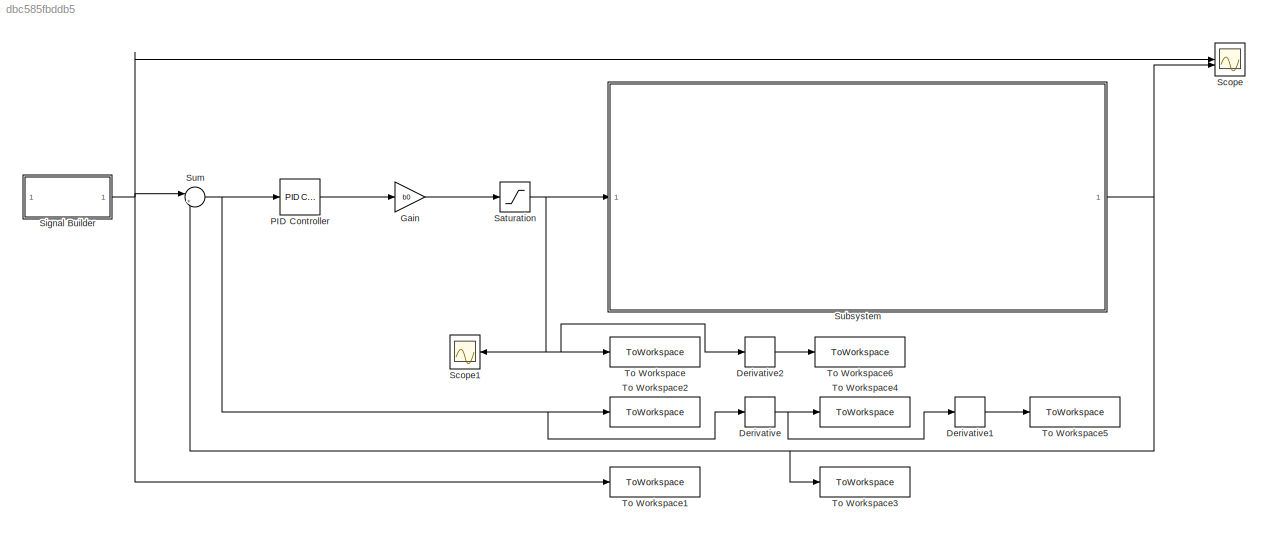
MODEL slx_dbc585fbddb5
KIND model
CONFIG AbsTol = 1e-6
CONFIG EnableMultiTasking = off
CONFIG FixedStep = 0.001
CONFIG MaxStep = auto
CONFIG MinStep = auto
CONFIG RelTol = 1e-6
CONFIG SampleTimeConstraint = Unconstrained
CONFIG SolverName = FixedStepAuto
CONFIG StartTime = 0.0
CONFIG StopTime = 10.0
BLOCK [Derivative] Derivative
BLOCK [Derivative] Derivative1
BLOCK [Derivative] Derivative2
BLOCK [Gain] Gain
  Gain = b0
BLOCK [Reference] PID Controller  REF=slpidlib/PID Controller
  LibrarySourceBlock = simulink/Continuous/PID Controller
  SourceBlock = slpidlib/PID Controller
  SourceType = PID 1dof
BLOCK [Saturate] Saturation
  LowerLimit = -2*u
  UpperLimit = 2*u
BLOCK [Scope] Scope
  Floating = off
  NumInputPorts = 2
  ScopeSpecificationString = Simulink.scopes.TimeScopeBlockCfg('CurrentConfiguration', extmgr.ConfigurationSet(extmgr.Configuration('Core','General UI',true,'FigureColor',[1 1 1]),extmgr.Configuration('Core','Source UI',true),extmgr.Configuration('Sources','WiredSimulink',true),extmgr.Configuration('Visuals','Time Domain',true,'SerializedDisplays',{struct('MinYLimReal','-0.45832','MaxYLimReal','4.12484','YLabelReal','','MinYL...<+2430ch>
BLOCK [Scope] Scope1
  Floating = off
  NumInputPorts = 1
  ScopeSpecificationString = Simulink.scopes.TimeScopeBlockCfg('CurrentConfiguration', extmgr.ConfigurationSet(extmgr.Configuration('Core','General UI',true,'FigureColor',[1 1 1]),extmgr.Configuration('Core','Source UI',true),extmgr.Configuration('Sources','WiredSimulink',true,'DataLoggingVariableName','ScopeData1'),extmgr.Configuration('Visuals','Time Domain',true,'SerializedDisplays',{struct('MinYLimReal','-1390.00000','Max...<+2467ch>
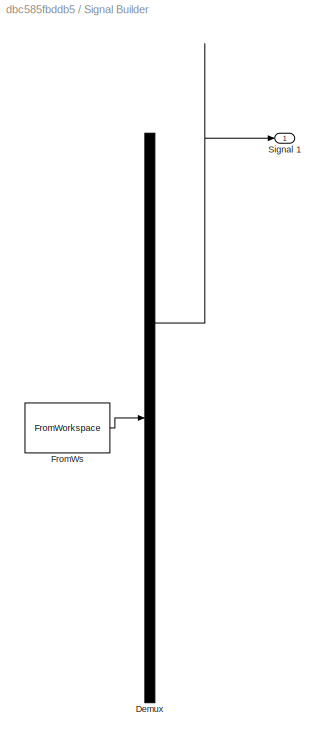
BLOCK [SubSystem] Signal Builder
  ClipboardFcn = sigbuilder_block('clipboard');
  CloseFcn = sigbuilder_block('close');
  ContinueFcn = sigbuilder_block('continue');
  CopyFcn = sigbuilder_block('copy');
  DeleteFcn = sigbuilder_block('delete');
  LoadFcn = sigbuilder_block('load');
  MaskHideContents = on
  ModelCloseFcn = sigbuilder_block('modelClose');
  NameChangeFcn = sigbuilder_block('namechange');
  OpenFcn = sigbuilder_block('open',[437.6 199.2 550.4 400 ]);
  PauseFcn = sigbuilder_block('pause');
  PreSaveFcn = sigbuilder_block('preSave');
  StartFcn = sigbuilder_block('start');
  StopFcn = sigbuilder_block('stop');
  Tag = STV Subsys
BLOCK [Demux] Signal Builder/Demux
  DisplayOption = none
  Outputs = 1
  Tag = STV Demux
BLOCK [FromWorkspace] Signal Builder/FromWs
  Tag = STV FromWs
  VariableName = tuvar
BLOCK [Outport] Signal Builder/Signal 1
  Tag = STV Outport
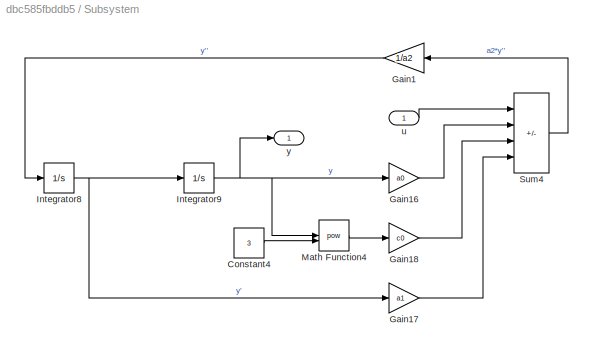
BLOCK [SubSystem] Subsystem
BLOCK [Constant] Subsystem/Constant4
  Value = 3
BLOCK [Gain] Subsystem/Gain1
  Gain = 1/a2
BLOCK [Gain] Subsystem/Gain16
  Gain = a0
BLOCK [Gain] Subsystem/Gain17
  Gain = a1
BLOCK [Gain] Subsystem/Gain18
  Gain = c0
BLOCK [Integrator] Subsystem/Integrator8
BLOCK [Integrator] Subsystem/Integrator9
BLOCK [Math] Subsystem/Math Function4
  Operator = pow
BLOCK [Sum] Subsystem/Sum4
  IconShape = rectangular
  Inputs = |+---
BLOCK [Inport] Subsystem/u
BLOCK [Outport] Subsystem/y
BLOCK [Sum] Sum
  Inputs = |+-
BLOCK [ToWorkspace] To Workspace
  FixptAsFi = on
  MaxDataPoints = inf
  SampleTime = -1
  SaveFormat = Timeseries
  VariableName = u
BLOCK [ToWorkspace] To Workspace1
  FixptAsFi = on
  MaxDataPoints = inf
  SampleTime = -1
  SaveFormat = Timeseries
  VariableName = w
BLOCK [ToWorkspace] To Workspace2
  FixptAsFi = on
  MaxDataPoints = inf
  SampleTime = -1
  SaveFormat = Timeseries
  VariableName = e
BLOCK [ToWorkspace] To Workspace3
  FixptAsFi = on
  MaxDataPoints = inf
  SampleTime = -1
  SaveFormat = Timeseries
  VariableName = y
BLOCK [ToWorkspace] To Workspace4
  FixptAsFi = on
  MaxDataPoints = inf
  SampleTime = -1
  SaveFormat = Timeseries
  VariableName = de
BLOCK [ToWorkspace] To Workspace5
  FixptAsFi = on
  MaxDataPoints = inf
  SampleTime = -1
  SaveFormat = Timeseries
  VariableName = dde
BLOCK [ToWorkspace] To Workspace6
  FixptAsFi = on
  MaxDataPoints = inf
  SampleTime = -1
  SaveFormat = Timeseries
  VariableName = du
LINE Derivative1:1 -> To Workspace5:1
LINE Derivative2:1 -> To Workspace6:1
NET Derivative:1 -> Derivative1:1, To Workspace4:1
LINE Gain:1 -> Saturation:1
LINE PID Controller:1 -> Gain:1
NET Saturation:1 -> Derivative2:1, Scope1:1, Subsystem:1, To Workspace:1
NET Signal Builder:1 -> Scope:1, Sum:1, To Workspace1:1
LINE Subsystem/Constant4:1 -> Subsystem/Math Function4:2
LINE Subsystem/Gain16:1 -> Subsystem/Sum4:2
LINE Subsystem/Gain17:1 -> Subsystem/Sum4:4
LINE Subsystem/Gain18:1 -> Subsystem/Sum4:3
LINE Subsystem/Gain1:1 -> Subsystem/Integrator8:1
NET Subsystem/Integrator8:1 -> Subsystem/Gain17:1, Subsystem/Integrator9:1
NET Subsystem/Integrator9:1 -> Subsystem/Gain16:1, Subsystem/Math Function4:1, Subsystem/y:1
LINE Subsystem/Math Function4:1 -> Subsystem/Gain18:1
LINE Subsystem/Sum4:1 -> Subsystem/Gain1:1
LINE Subsystem/u:1 -> Subsystem/Sum4:1
NET Subsystem:1 -> Scope:2, Sum:2, To Workspace3:1
NET Sum:1 -> Derivative:1, PID Controller:1, To Workspace2:1
note: NET lines group one-source signal fan-out (src -> all destinations, sorted); 1:1 wires keep LINE
